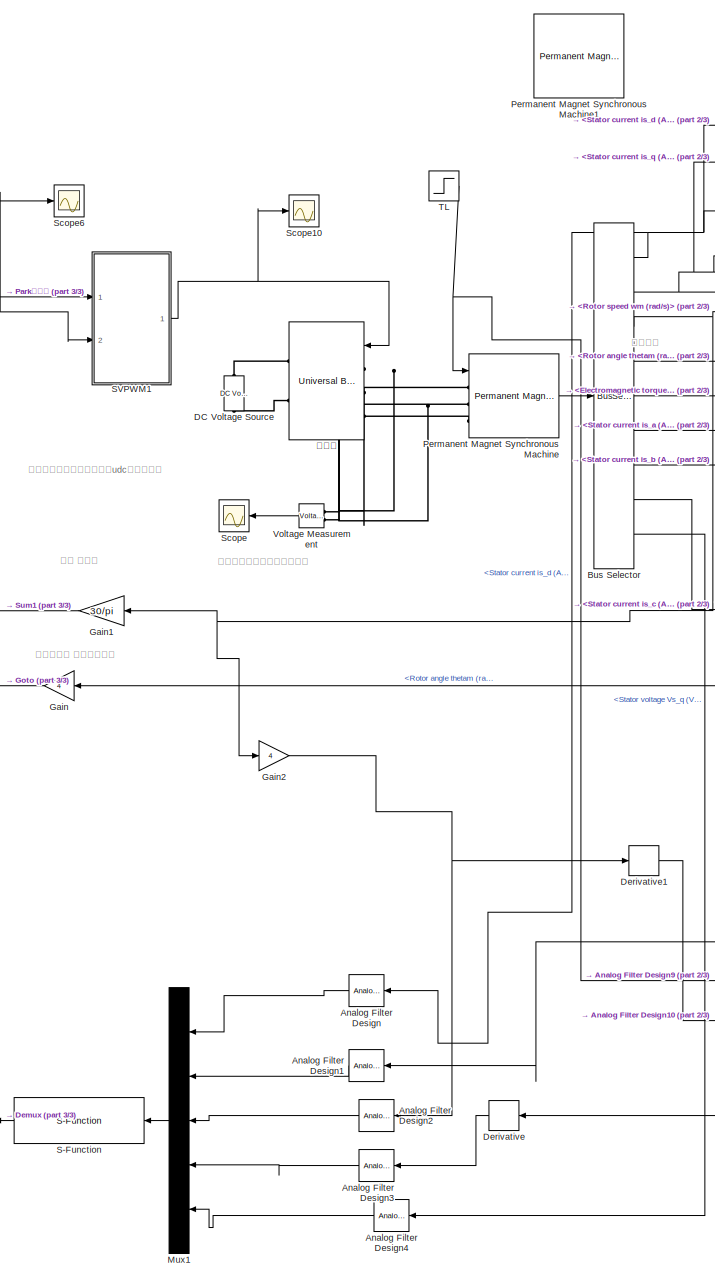
[diagram: root canvas - part 1/3, center side, full height]
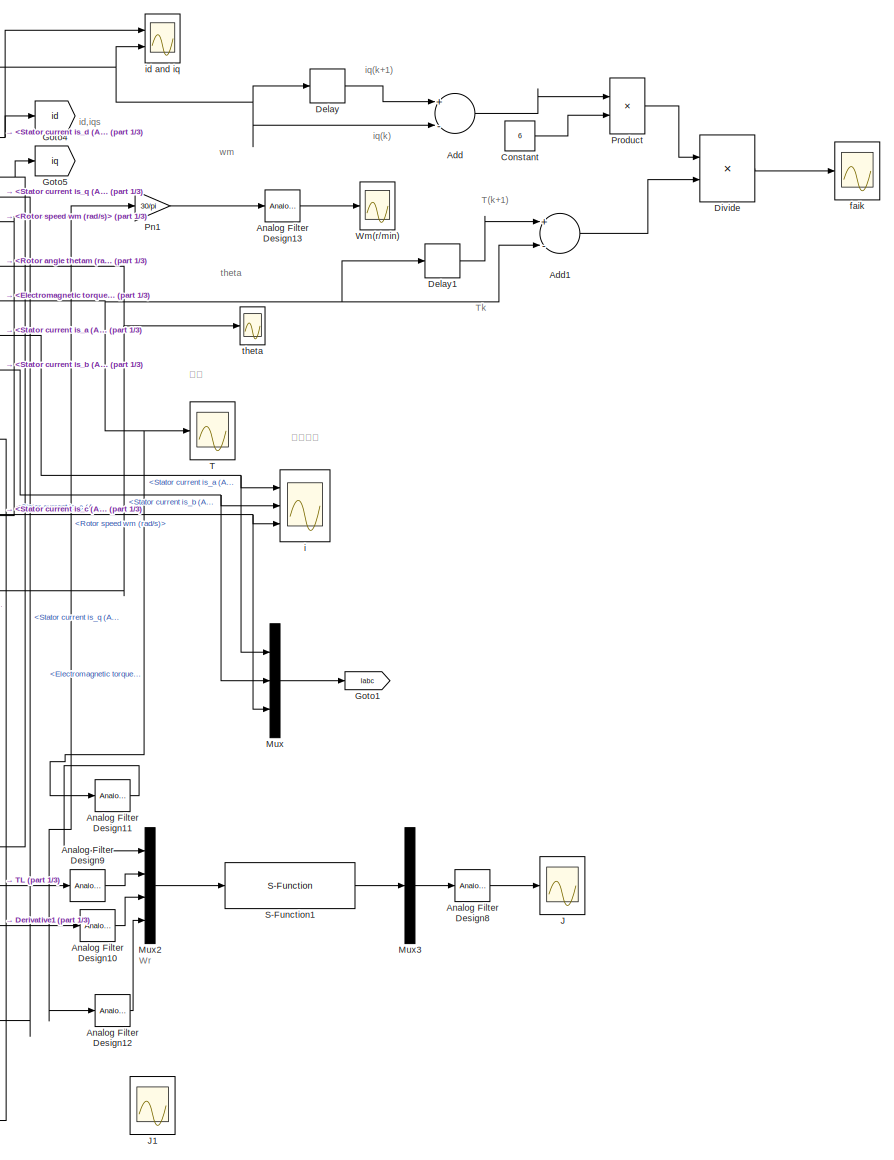
[diagram: root canvas - part 2/3, right side, full height]
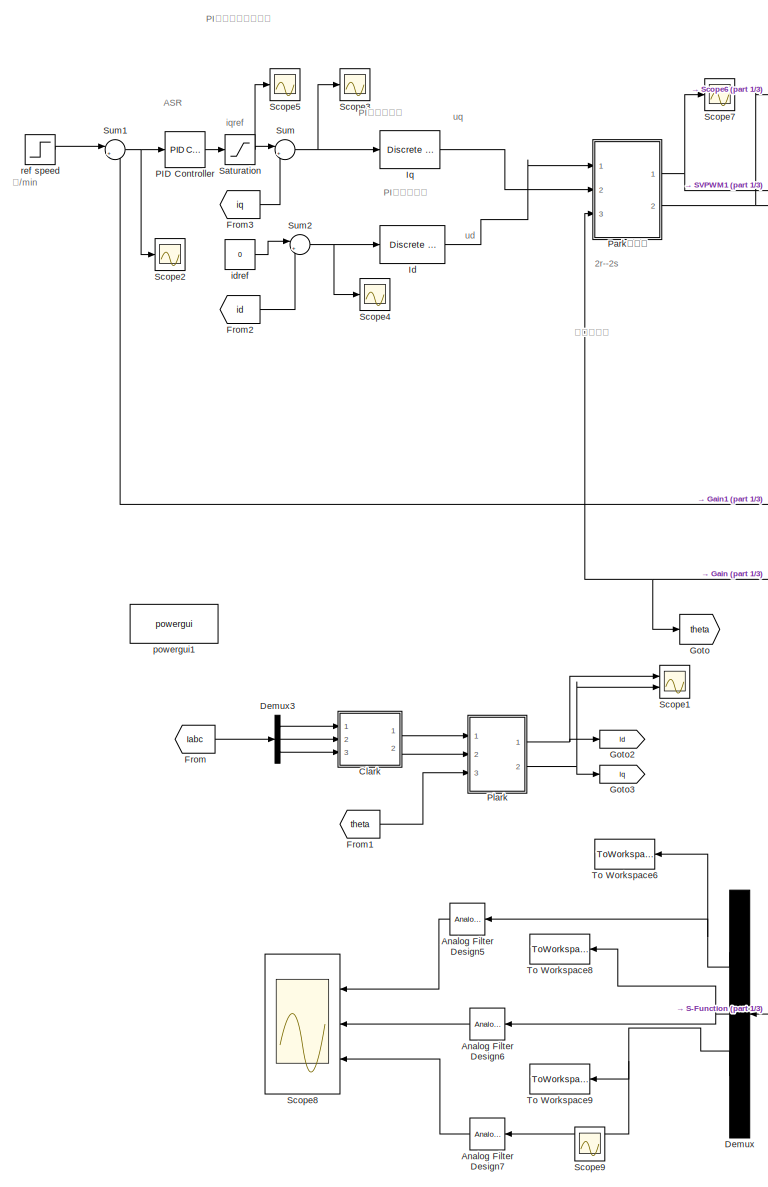
[diagram: root canvas - part 3/3, left side, full height]
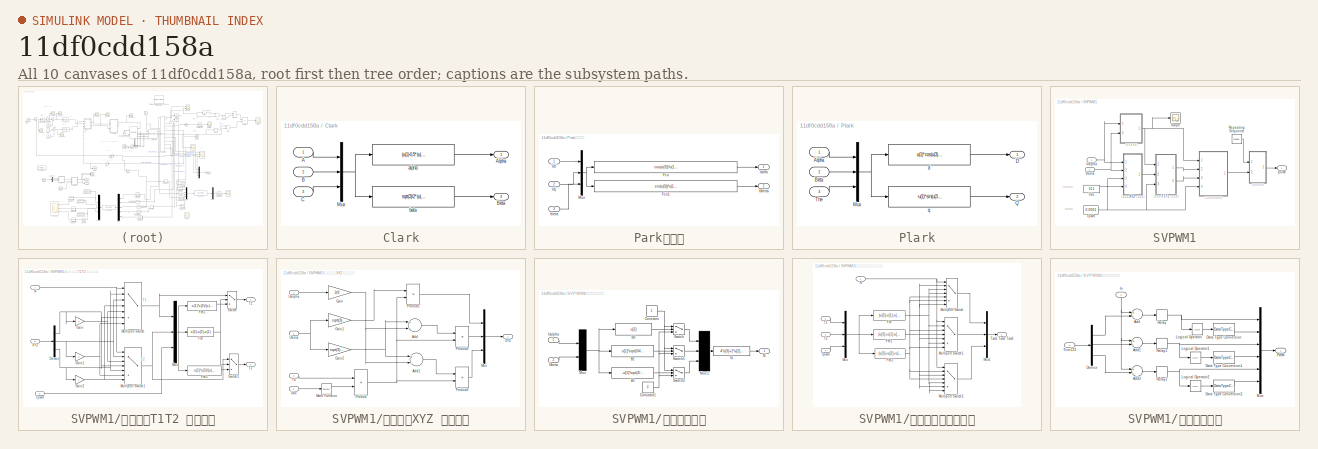
[diagram: thumbnail index - all 10 canvases of the model, root first then tree order]
MODEL slx_11df0cdd158a
KIND model
CONFIG AbsTol = auto
CONFIG FixedStep = 1e-5
CONFIG InitFcn = Ts = 1e-5\n\n
CONFIG MaxStep = auto
CONFIG MinStep = auto
CONFIG RelTol = 1e-4
CONFIG SampleTimeConstraint = Unconstrained
CONFIG Solver = ode4
CONFIG SolverMode = Auto
CONFIG SolverName = ode4
CONFIG StartTime = 0.0
CONFIG StopTime = 2.5
BLOCK [Sum] Add
  InputSameDT = off
  Inputs = +-
  OutDataTypeStr = Inherit: Inherit via internal rule
  Ports = [2, 1]
  SaturateOnIntegerOverflow = off
BLOCK [Sum] Add1
  InputSameDT = off
  Inputs = +-
  OutDataTypeStr = Inherit: Inherit via internal rule
  Ports = [2, 1]
  SaturateOnIntegerOverflow = off
BLOCK [Reference] Analog Filter Design  REF=dsparch4/Analog
Filter Design
  Ports = [1, 1]
  SourceBlock = dsparch4/Analog\nFilter Design
  SourceType = Analog Filter Design
BLOCK [Reference] Analog Filter Design1  REF=dsparch4/Analog
Filter Design
  Ports = [1, 1]
  SourceBlock = dsparch4/Analog\nFilter Design
  SourceType = Analog Filter Design
BLOCK [Reference] Analog Filter Design10  REF=dsparch4/Analog
Filter Design
  Commented = on
  Ports = [1, 1]
  SourceBlock = dsparch4/Analog\nFilter Design
  SourceType = Analog Filter Design
BLOCK [Reference] Analog Filter Design11  REF=dsparch4/Analog
Filter Design
  Commented = on
  Ports = [1, 1]
  SourceBlock = dsparch4/Analog\nFilter Design
  SourceType = Analog Filter Design
BLOCK [Reference] Analog Filter Design12  REF=dsparch4/Analog
Filter Design
  Commented = on
  Ports = [1, 1]
  SourceBlock = dsparch4/Analog\nFilter Design
  SourceType = Analog Filter Design
BLOCK [Reference] Analog Filter Design13  REF=dsparch4/Analog
Filter Design
  Ports = [1, 1]
  SourceBlock = dsparch4/Analog\nFilter Design
  SourceType = Analog Filter Design
BLOCK [Reference] Analog Filter Design2  REF=dsparch4/Analog
Filter Design
  Ports = [1, 1]
  SourceBlock = dsparch4/Analog\nFilter Design
  SourceType = Analog Filter Design
BLOCK [Reference] Analog Filter Design3  REF=dsparch4/Analog
Filter Design
  Ports = [1, 1]
  SourceBlock = dsparch4/Analog\nFilter Design
  SourceType = Analog Filter Design
BLOCK [Reference] Analog Filter Design4  REF=dsparch4/Analog
Filter Design
  Ports = [1, 1]
  SourceBlock = dsparch4/Analog\nFilter Design
  SourceType = Analog Filter Design
BLOCK [Reference] Analog Filter Design5  REF=dsparch4/Analog
Filter Design
  Ports = [1, 1]
  SourceBlock = dsparch4/Analog\nFilter Design
  SourceType = Analog Filter Design
BLOCK [Reference] Analog Filter Design6  REF=dsparch4/Analog
Filter Design
  Ports = [1, 1]
  SourceBlock = dsparch4/Analog\nFilter Design
  SourceType = Analog Filter Design
BLOCK [Reference] Analog Filter Design7  REF=dsparch4/Analog
Filter Design
  Ports = [1, 1]
  SourceBlock = dsparch4/Analog\nFilter Design
  SourceType = Analog Filter Design
BLOCK [Reference] Analog Filter Design8  REF=dsparch4/Analog
Filter Design
  Commented = on
  Ports = [1, 1]
  SourceBlock = dsparch4/Analog\nFilter Design
  SourceType = Analog Filter Design
BLOCK [Reference] Analog Filter Design9  REF=dsparch4/Analog
Filter Design
  Commented = on
  Ports = [1, 1]
  SourceBlock = dsparch4/Analog\nFilter Design
  SourceType = Analog Filter Design
BLOCK [BusSelector] Bus Selector
  OutputSignals = Stator current is_d (A),Stator current is_q (A),Rotor speed wm (rad/s),Rotor angle thetam (rad),Electromagnetic torque Te (N*m),Stator current is_a (A),Stator current is_b (A),Stator current is_c (A),Stator voltage Vs_q (V)
  Ports = [1, 9]
BLOCK [SubSystem] Clark
  Ports = [3, 2]
  RequestExecContextInheritance = off
  Variant = off
BLOCK [Inport] Clark/A
  IconDisplay = Port number
BLOCK [Outport] Clark/Alpha
  IconDisplay = Port number
BLOCK [Inport] Clark/B
  IconDisplay = Port number
  Port = 2
BLOCK [Outport] Clark/Beta
  IconDisplay = Port number
  Port = 2
BLOCK [Inport] Clark/C
  IconDisplay = Port number
  Port = 3
BLOCK [Mux] Clark/Mux
  DisplayOption = bar
  Inputs = 3
  Ports = [3, 1]
BLOCK [Fcn] Clark/alpha
  Expr = (u(1)-0.5*(u(2)+u(3)))*2/3
BLOCK [Fcn] Clark/beta
  Expr = sqrt(3)/2*(u(2)-u(3))*2/3
BLOCK [Constant] Constant
  Value = 6
BLOCK [Reference] DC Voltage Source  REF=powerlib/Electrical
Sources/DC Voltage Source
  Ports = [0, 0, 0, 0, 0, 1, 1]
  SourceBlock = powerlib/Electrical\nSources/DC Voltage Source
  SourceType = DC Voltage Source
BLOCK [Delay] Delay
  DelayLength = 1
  InitialCondition = 0
  InputPortMap = u0
  Ports = [1, 1]
BLOCK [Delay] Delay1
  DelayLength = 1
  InitialCondition = 0
  InputPortMap = u0
  Ports = [1, 1]
BLOCK [Demux] Demux
  DisplayOption = bar
  Outputs = 3
  Ports = [1, 3]
BLOCK [Demux] Demux3
  DisplayOption = bar
  Outputs = 3
  Ports = [1, 3]
BLOCK [Derivative] Derivative
BLOCK [Derivative] Derivative1
  Commented = on
BLOCK [Product] Divide
  InputSameDT = off
  Inputs = /*
  OutDataTypeStr = Inherit: Inherit via internal rule
  Ports = [2, 1]
  RndMeth = Floor
  SaturateOnIntegerOverflow = off
BLOCK [From] From
  GotoTag = Iabc
  TagVisibility = global
BLOCK [From] From1
  GotoTag = theta
BLOCK [From] From2
  GotoTag = id
BLOCK [From] From3
  GotoTag = iq
BLOCK [Gain] Gain
  Gain = 4
  OutDataTypeStr = Inherit: Inherit via internal rule
  ParamDataTypeStr = Inherit: Inherit via internal rule
  SaturateOnIntegerOverflow = off
BLOCK [Gain] Gain1
  Gain = 30/pi
  OutDataTypeStr = Inherit: Inherit via internal rule
  ParamDataTypeStr = Inherit: Inherit via internal rule
  SaturateOnIntegerOverflow = off
BLOCK [Gain] Gain2
  Gain = 4
  OutDataTypeStr = Inherit: Inherit via internal rule
  ParamDataTypeStr = Inherit: Inherit via internal rule
  SaturateOnIntegerOverflow = off
BLOCK [Goto] Goto
  GotoTag = theta
BLOCK [Goto] Goto1
  GotoTag = Iabc
  TagVisibility = global
BLOCK [Goto] Goto2
  GotoTag = Id
  TagVisibility = global
BLOCK [Goto] Goto3
  GotoTag = Iq
  TagVisibility = global
BLOCK [Goto] Goto4
  GotoTag = id
BLOCK [Goto] Goto5
  GotoTag = iq
BLOCK [Reference] Id  REF=powerlib_extras/Discrete 
Control Blocks/Discrete
PI Controller
  Ports = [1, 1]
  SourceBlock = powerlib_extras/Discrete \nControl Blocks/Discrete\nPI Controller
  SourceType = Discrete PI Controller
BLOCK [Reference] Iq  REF=powerlib_extras/Discrete 
Control Blocks/Discrete
PI Controller
  Ports = [1, 1]
  SourceBlock = powerlib_extras/Discrete \nControl Blocks/Discrete\nPI Controller
  SourceType = Discrete PI Controller
BLOCK [Scope] J
  Commented = on
  Ports = [1]
  ScopeSpecificationString = Simulink.scopes.TimeScopeBlockCfg('CurrentConfiguration', extmgr.ConfigurationSet(extmgr.Configuration('Core','General UI',true,'FigureColor',[1 1 1]),extmgr.Configuration('Core','Source UI',true),extmgr.Configuration('Sources','WiredSimulink',true,'DataLoggingVariableName','ScopeData3'),extmgr.Configuration('Visuals','Time Domain',true,'SerializedDisplays',{struct('MinYLimReal','-0.000008','MaxYL...<+1594ch>
BLOCK [Scope] J1
  Commented = on
  Ports = [1]
  ScopeSpecificationString = Simulink.scopes.TimeScopeBlockCfg('CurrentConfiguration', extmgr.ConfigurationSet(extmgr.Configuration('Core','General UI',true,'FigureColor',[1 1 1]),extmgr.Configuration('Core','Source UI',true),extmgr.Configuration('Sources','WiredSimulink',true,'DataLoggingVariableName','ScopeData1'),extmgr.Configuration('Visuals','Time Domain',true,'SerializedDisplays',{struct('MinYLimReal','-18.89443','MaxYL...<+1584ch>
BLOCK [Mux] Mux
  DisplayOption = bar
  Inputs = 3
  Ports = [3, 1]
BLOCK [Mux] Mux1
  DisplayOption = bar
  Inputs = 5
  Ports = [5, 1]
BLOCK [Mux] Mux2
  Commented = on
  DisplayOption = bar
  Ports = [4, 1]
BLOCK [Mux] Mux3
  Commented = on
  DisplayOption = bar
  Inputs = 1
  Ports = [1, 1]
BLOCK [Reference] PID Controller  REF=simulink/Continuous/PID Controller
  Ports = [1, 1]
  SourceBlock = simulink/Continuous/PID Controller
  SourceType = PID 1dof
BLOCK [SubSystem] Park逆变换
  Ports = [3, 2]
  RequestExecContextInheritance = off
  Variant = off
BLOCK [Fcn] Park逆变换/Fcn
  Expr = cos(u(3))*u(1)-sin(u(3))*u(2)
BLOCK [Fcn] Park逆变换/Fcn1
  Expr = sin(u(3))*u(1)+cos(u(3))*u(2)
BLOCK [Mux] Park逆变换/Mux
  DisplayOption = bar
  Inputs = 3
  Ports = [3, 1]
BLOCK [Outport] Park逆变换/Ualfa
  IconDisplay = Port number
BLOCK [Outport] Park逆变换/Ubeita
  IconDisplay = Port number
  Port = 2
BLOCK [Inport] Park逆变换/Ud'
  IconDisplay = Port number
BLOCK [Inport] Park逆变换/Uq'
  IconDisplay = Port number
  Port = 2
BLOCK [Inport] Park逆变换/theta
  IconDisplay = Port number
  Port = 3
BLOCK [Reference] Permanent Magnet Synchronous Machine  REF=powerlib/Machines/Permanent Magnet
Synchronous Machine
  Ports = [1, 1, 0, 0, 0, 3]
  SourceBlock = powerlib/Machines/Permanent Magnet\nSynchronous Machine
  SourceType = Permanent Magnet Synchronous Machine
BLOCK [Reference] Permanent Magnet Synchronous Machine1  REF=powerlib/Machines/Permanent Magnet
Synchronous Machine
  Commented = on
  Ports = [1, 1, 0, 0, 0, 3]
  SourceBlock = powerlib/Machines/Permanent Magnet\nSynchronous Machine
  SourceType = Permanent Magnet Synchronous Machine
BLOCK [SubSystem] Plark
  Ports = [3, 2]
  RequestExecContextInheritance = off
  Variant = off
BLOCK [Inport] Plark/Alpha
  IconDisplay = Port number
BLOCK [Inport] Plark/Beta
  IconDisplay = Port number
  Port = 2
BLOCK [Outport] Plark/D
  IconDisplay = Port number
BLOCK [Mux] Plark/Mux
  DisplayOption = bar
  Inputs = 3
  Ports = [3, 1]
BLOCK [Outport] Plark/Q
  IconDisplay = Port number
  Port = 2
BLOCK [Inport] Plark/The
  IconDisplay = Port number
  Port = 3
BLOCK [Fcn] Plark/d
  Expr = u(1)*cos(u(3))+u(2)*sin(u(3))
BLOCK [Fcn] Plark/q
  Expr = -u(1)*sin(u(3))+u(2)*cos(u(3))
BLOCK [Gain] Pn1
  Gain = 30/pi
  OutDataTypeStr = Inherit: Inherit via internal rule
  ParamDataTypeStr = Inherit: Inherit via internal rule
  SaturateOnIntegerOverflow = off
BLOCK [Product] Product
  InputSameDT = off
  OutDataTypeStr = Inherit: Inherit via internal rule
  Ports = [2, 1]
  RndMeth = Floor
  SaturateOnIntegerOverflow = off
BLOCK [S-Function] S-Function
  EnableBusSupport = off
  FunctionName = Synchronous_demarcate
  Ports = [1, 1]
  SFunctionDeploymentMode = off
BLOCK [S-Function] S-Function1
  Commented = on
  EnableBusSupport = off
  FunctionName = Synchronous_demarcate2
  Ports = [1, 1]
  SFunctionDeploymentMode = off
BLOCK [SubSystem] SVPWM1
  Ports = [2, 1]
  RequestExecContextInheritance = off
  Variant = off
BLOCK [Reference] SVPWM1/Repeating Sequence  REF=simulink/Sources/Repeating
Sequence
  Ports = [0, 1]
  SourceBlock = simulink/Sources/Repeating\nSequence
  SourceType = Repeating table
BLOCK [Scope] SVPWM1/Scope
  Ports = [1]
  ScopeSpecificationString = Simulink.scopes.TimeScopeBlockCfg('CurrentConfiguration', extmgr.ConfigurationSet(extmgr.Configuration('Core','General UI',true),extmgr.Configuration('Core','Source UI',true),extmgr.Configuration('Sources','WiredSimulink',true,'DataLoggingVariableName','ScopeData1'),extmgr.Configuration('Visuals','Time Domain',true,'SerializedDisplays',{struct('MinYLimReal','0.60608','MaxYLimReal','6.16547','YLabe...<+1436ch>
BLOCK [Constant] SVPWM1/Tpwm
  Value = 0.0001
BLOCK [Inport] SVPWM1/Valpha
  IconDisplay = Port number
BLOCK [Inport] SVPWM1/Vbeta
  IconDisplay = Port number
  Port = 2
BLOCK [Constant] SVPWM1/Vdc
  Value = 311
BLOCK [Outport] SVPWM1/pulse
  IconDisplay = Port number
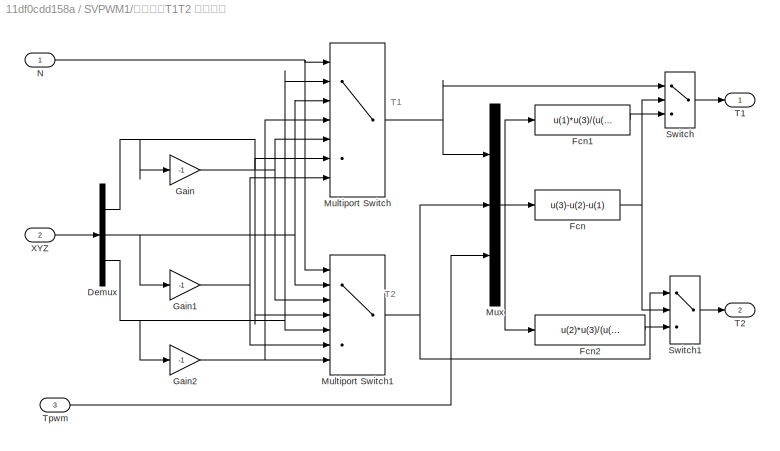
BLOCK [SubSystem] SVPWM1/不同扇区T1T2 计算模型
  Ports = [3, 2]
  RequestExecContextInheritance = off
  Variant = off
BLOCK [Demux] SVPWM1/不同扇区T1T2 计算模型/Demux
  DisplayOption = bar
  Outputs = 3
  Ports = [1, 3]
BLOCK [Fcn] SVPWM1/不同扇区T1T2 计算模型/Fcn
  Expr = u(3)-u(2)-u(1)
BLOCK [Fcn] SVPWM1/不同扇区T1T2 计算模型/Fcn1
  Expr = u(1)*u(3)/(u(1)+u(2))
BLOCK [Fcn] SVPWM1/不同扇区T1T2 计算模型/Fcn2
  Expr = u(2)*u(3)/(u(1)+u(2))
BLOCK [Gain] SVPWM1/不同扇区T1T2 计算模型/Gain
  Gain = -1
  OutDataTypeStr = Inherit: Inherit via internal rule
  ParamDataTypeStr = Inherit: Inherit via internal rule
  SaturateOnIntegerOverflow = off
BLOCK [Gain] SVPWM1/不同扇区T1T2 计算模型/Gain1
  Gain = -1
  OutDataTypeStr = Inherit: Inherit via internal rule
  ParamDataTypeStr = Inherit: Inherit via internal rule
  SaturateOnIntegerOverflow = off
BLOCK [Gain] SVPWM1/不同扇区T1T2 计算模型/Gain2
  Gain = -1
  OutDataTypeStr = Inherit: Inherit via internal rule
  ParamDataTypeStr = Inherit: Inherit via internal rule
  SaturateOnIntegerOverflow = off
BLOCK [MultiPortSwitch] SVPWM1/不同扇区T1T2 计算模型/Multiport Switch
  DiagnosticForDefault = None
  InputSameDT = off
  Inputs = 6
  Ports = [7, 1]
  SaturateOnIntegerOverflow = off
BLOCK [MultiPortSwitch] SVPWM1/不同扇区T1T2 计算模型/Multiport Switch1
  DiagnosticForDefault = None
  InputSameDT = off
  Inputs = 6
  Ports = [7, 1]
  SaturateOnIntegerOverflow = off
BLOCK [Mux] SVPWM1/不同扇区T1T2 计算模型/Mux
  DisplayOption = bar
  Inputs = 3
  Ports = [3, 1]
BLOCK [Inport] SVPWM1/不同扇区T1T2 计算模型/N
  IconDisplay = Port number
BLOCK [Switch] SVPWM1/不同扇区T1T2 计算模型/Switch
  InputSameDT = off
  SaturateOnIntegerOverflow = off
BLOCK [Switch] SVPWM1/不同扇区T1T2 计算模型/Switch1
  Criteria = u2 > Threshold
  InputSameDT = off
  SaturateOnIntegerOverflow = off
BLOCK [Outport] SVPWM1/不同扇区T1T2 计算模型/T1
  IconDisplay = Port number
BLOCK [Outport] SVPWM1/不同扇区T1T2 计算模型/T2
  IconDisplay = Port number
  Port = 2
BLOCK [Inport] SVPWM1/不同扇区T1T2 计算模型/Tpwm
  IconDisplay = Port number
  Port = 3
BLOCK [Inport] SVPWM1/不同扇区T1T2 计算模型/XYZ
  IconDisplay = Port number
  Port = 2
BLOCK [SubSystem] SVPWM1/不同扇区XYZ 计算模型
  Ports = [4, 1]
  RequestExecContextInheritance = off
  Variant = off
BLOCK [Sum] SVPWM1/不同扇区XYZ 计算模型/Add
  InputSameDT = off
  OutDataTypeStr = Inherit: Inherit via internal rule
  Ports = [2, 1]
  SaturateOnIntegerOverflow = off
BLOCK [Sum] SVPWM1/不同扇区XYZ 计算模型/Add1
  InputSameDT = off
  Inputs = +-
  OutDataTypeStr = Inherit: Inherit via internal rule
  Ports = [2, 1]
  SaturateOnIntegerOverflow = off
BLOCK [Gain] SVPWM1/不同扇区XYZ 计算模型/Gain
  Gain = 3/2
  OutDataTypeStr = Inherit: Inherit via internal rule
  ParamDataTypeStr = Inherit: Inherit via internal rule
  SaturateOnIntegerOverflow = off
BLOCK [Gain] SVPWM1/不同扇区XYZ 计算模型/Gain1
  Gain = sqrt(3)
  OutDataTypeStr = Inherit: Inherit via internal rule
  ParamDataTypeStr = Inherit: Inherit via internal rule
  SaturateOnIntegerOverflow = off
BLOCK [Gain] SVPWM1/不同扇区XYZ 计算模型/Gain2
  Gain = sqrt(3)/2
  OutDataTypeStr = Inherit: Inherit via internal rule
  ParamDataTypeStr = Inherit: Inherit via internal rule
  SaturateOnIntegerOverflow = off
BLOCK [Math] SVPWM1/不同扇区XYZ 计算模型/Math Function
  Operator = reciprocal
  Ports = [1, 1]
BLOCK [Mux] SVPWM1/不同扇区XYZ 计算模型/Mux
  DisplayOption = bar
  Inputs = 3
  Ports = [3, 1]
BLOCK [Product] SVPWM1/不同扇区XYZ 计算模型/Product
  InputSameDT = off
  OutDataTypeStr = Inherit: Inherit via internal rule
  Ports = [2, 1]
  SaturateOnIntegerOverflow = off
BLOCK [Product] SVPWM1/不同扇区XYZ 计算模型/Product1
  InputSameDT = off
  OutDataTypeStr = Inherit: Inherit via internal rule
  Ports = [2, 1]
  SaturateOnIntegerOverflow = off
BLOCK [Product] SVPWM1/不同扇区XYZ 计算模型/Product2
  InputSameDT = off
  OutDataTypeStr = Inherit: Inherit via internal rule
  Ports = [2, 1]
  SaturateOnIntegerOverflow = off
BLOCK [Product] SVPWM1/不同扇区XYZ 计算模型/Product3
  InputSameDT = off
  OutDataTypeStr = Inherit: Inherit via internal rule
  Ports = [2, 1]
  SaturateOnIntegerOverflow = off
BLOCK [Inport] SVPWM1/不同扇区XYZ 计算模型/Ts
  IconDisplay = Port number
  Port = 3
BLOCK [Inport] SVPWM1/不同扇区XYZ 计算模型/Ualpha
  IconDisplay = Port number
BLOCK [Inport] SVPWM1/不同扇区XYZ 计算模型/Ubeta
  IconDisplay = Port number
  Port = 2
BLOCK [Inport] SVPWM1/不同扇区XYZ 计算模型/Udc
  IconDisplay = Port number
  Port = 4
BLOCK [Outport] SVPWM1/不同扇区XYZ 计算模型/XYZ
  IconDisplay = Port number
BLOCK [SubSystem] SVPWM1/扇区计算模型
  Ports = [2, 1]
  RequestExecContextInheritance = off
  Variant = off
BLOCK [Fcn] SVPWM1/扇区计算模型/B0
  Expr = u[2]
BLOCK [Fcn] SVPWM1/扇区计算模型/B1
  Expr = u[1]*sqrt(3/4)-0.5*u[2]
BLOCK [Fcn] SVPWM1/扇区计算模型/B2
  Expr = -u[1]*sqrt(3/4)-u[2]*0.5
BLOCK [Constant] SVPWM1/扇区计算模型/Constant
BLOCK [Constant] SVPWM1/扇区计算模型/Constant1
  Value = 0
BLOCK [Mux] SVPWM1/扇区计算模型/Mux
  Inputs = 2
  Ports = [2, 1]
BLOCK [Mux] SVPWM1/扇区计算模型/Mux1
  Inputs = 3
  Ports = [3, 1]
BLOCK [Fcn] SVPWM1/扇区计算模型/N
  Expr = 4*u[3]+2*u[2]+u[1]
BLOCK [Outport] SVPWM1/扇区计算模型/N 
  IconDisplay = Port number
BLOCK [Switch] SVPWM1/扇区计算模型/Switch
  InputSameDT = off
  SaturateOnIntegerOverflow = off
BLOCK [Switch] SVPWM1/扇区计算模型/Switch1
  InputSameDT = off
  SaturateOnIntegerOverflow = off
BLOCK [Switch] SVPWM1/扇区计算模型/Switch2
  InputSameDT = off
  SaturateOnIntegerOverflow = off
BLOCK [Inport] SVPWM1/扇区计算模型/Ualpha
  IconDisplay = Port number
BLOCK [Inport] SVPWM1/扇区计算模型/Ubeta
  IconDisplay = Port number
  Port = 2
BLOCK [SubSystem] SVPWM1/空间电压矢量切换点
  Ports = [4, 1]
  RequestExecContextInheritance = off
  Variant = off
BLOCK [Fcn] SVPWM1/空间电压矢量切换点/Fcn
  Expr = (u[3]-u[1]-u[2])/4
BLOCK [Fcn] SVPWM1/空间电压矢量切换点/Fcn1
  Expr = (u[3]+u[1]-u[2])/4
BLOCK [Fcn] SVPWM1/空间电压矢量切换点/Fcn2
  Expr = (u[3]+u[2]+u[1])/4
BLOCK [MultiPortSwitch] SVPWM1/空间电压矢量切换点/Multiport Switch
  DiagnosticForDefault = None
  InputSameDT = off
  Inputs = 6
  Ports = [7, 1]
  SaturateOnIntegerOverflow = off
BLOCK [MultiPortSwitch] SVPWM1/空间电压矢量切换点/Multiport Switch1
  DiagnosticForDefault = None
  InputSameDT = off
  Inputs = 6
  Ports = [7, 1]
  SaturateOnIntegerOverflow = off
BLOCK [MultiPortSwitch] SVPWM1/空间电压矢量切换点/Multiport Switch2
  DiagnosticForDefault = None
  InputSameDT = off
  Inputs = 6
  Ports = [7, 1]
  SaturateOnIntegerOverflow = off
BLOCK [Mux] SVPWM1/空间电压矢量切换点/Mux
  DisplayOption = bar
  Inputs = 3
  Ports = [3, 1]
BLOCK [Mux] SVPWM1/空间电压矢量切换点/Mux1
  DisplayOption = bar
  Inputs = 3
  Ports = [3, 1]
BLOCK [Inport] SVPWM1/空间电压矢量切换点/N
  IconDisplay = Port number
BLOCK [Inport] SVPWM1/空间电压矢量切换点/T1
  IconDisplay = Port number
  Port = 2
BLOCK [Inport] SVPWM1/空间电压矢量切换点/T2
  IconDisplay = Port number
  Port = 3
BLOCK [Outport] SVPWM1/空间电压矢量切换点/Tcm1 Tcm2 Tcm3
  IconDisplay = Port number
BLOCK [Inport] SVPWM1/空间电压矢量切换点/Tpwm
  IconDisplay = Port number
  Port = 4
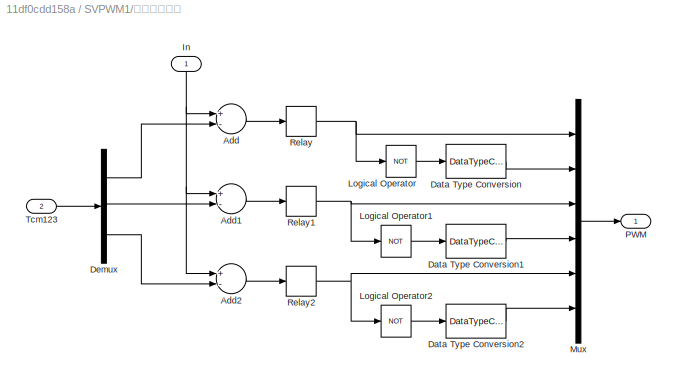
BLOCK [SubSystem] SVPWM1/脉冲输出模型
  Ports = [2, 1]
  RequestExecContextInheritance = off
  Variant = off
BLOCK [Sum] SVPWM1/脉冲输出模型/Add
  InputSameDT = off
  Inputs = +-
  OutDataTypeStr = Inherit: Inherit via internal rule
  Ports = [2, 1]
  SaturateOnIntegerOverflow = off
BLOCK [Sum] SVPWM1/脉冲输出模型/Add1
  InputSameDT = off
  Inputs = +-
  OutDataTypeStr = Inherit: Inherit via internal rule
  Ports = [2, 1]
  SaturateOnIntegerOverflow = off
BLOCK [Sum] SVPWM1/脉冲输出模型/Add2
  InputSameDT = off
  Inputs = +-
  OutDataTypeStr = Inherit: Inherit via internal rule
  Ports = [2, 1]
  SaturateOnIntegerOverflow = off
BLOCK [DataTypeConversion] SVPWM1/脉冲输出模型/Data Type Conversion
  OutDataTypeStr = double
  RndMeth = Floor
  SaturateOnIntegerOverflow = off
BLOCK [DataTypeConversion] SVPWM1/脉冲输出模型/Data Type Conversion1
  OutDataTypeStr = double
  RndMeth = Floor
  SaturateOnIntegerOverflow = off
BLOCK [DataTypeConversion] SVPWM1/脉冲输出模型/Data Type Conversion2
  OutDataTypeStr = double
  RndMeth = Floor
  SaturateOnIntegerOverflow = off
BLOCK [Demux] SVPWM1/脉冲输出模型/Demux
  DisplayOption = bar
  Outputs = 3
  Ports = [1, 3]
BLOCK [Inport] SVPWM1/脉冲输出模型/In
  IconDisplay = Port number
BLOCK [Logic] SVPWM1/脉冲输出模型/Logical Operator
  AllPortsSameDT = off
  Operator = NOT
  OutDataTypeStr = boolean
  Ports = [1, 1]
BLOCK [Logic] SVPWM1/脉冲输出模型/Logical Operator1
  AllPortsSameDT = off
  Operator = NOT
  OutDataTypeStr = boolean
  Ports = [1, 1]
BLOCK [Logic] SVPWM1/脉冲输出模型/Logical Operator2
  AllPortsSameDT = off
  Operator = NOT
  OutDataTypeStr = boolean
  Ports = [1, 1]
BLOCK [Mux] SVPWM1/脉冲输出模型/Mux
  DisplayOption = bar
  Inputs = 6
  Ports = [6, 1]
BLOCK [Outport] SVPWM1/脉冲输出模型/PWM
  IconDisplay = Port number
BLOCK [Relay] SVPWM1/脉冲输出模型/Relay
  OffSwitchValue = -eps
BLOCK [Relay] SVPWM1/脉冲输出模型/Relay1
  OffSwitchValue = -eps
BLOCK [Relay] SVPWM1/脉冲输出模型/Relay2
  OffSwitchValue = -eps
BLOCK [Inport] SVPWM1/脉冲输出模型/Tcm123
  IconDisplay = Port number
  Port = 2
BLOCK [Saturate] Saturation
  InputPortMap = u0
  LowerLimit = -20
  Ports = [1, 1]
  UpperLimit = 20
BLOCK [Scope] Scope
  Ports = [1]
  ScopeSpecificationString = Simulink.scopes.TimeScopeBlockCfg('CurrentConfiguration', extmgr.ConfigurationSet(extmgr.Configuration('Core','General UI',true),extmgr.Configuration('Core','Source UI',true),extmgr.Configuration('Sources','WiredSimulink',true,'DataLoggingSaveFormat','Array','DataLoggingDecimation','1','DataLoggingDecimateData',true),extmgr.Configuration('Visuals','Time Domain',true,'SerializedDisplays',{struct('M...<+1515ch>
BLOCK [Scope] Scope1
  NumInputPorts = 2
  Ports = [2]
  ScopeSpecificationString = Simulink.scopes.TimeScopeBlockCfg('CurrentConfiguration', extmgr.ConfigurationSet(extmgr.Configuration('Core','General UI',true),extmgr.Configuration('Core','Source UI',true),extmgr.Configuration('Sources','WiredSimulink',true,'DataLoggingVariableName','ScopeData2'),extmgr.Configuration('Visuals','Time Domain',true,'SerializedDisplays',{struct('MinYLimReal','-3.91087','MaxYLimReal','23.15011','YLa...<+1409ch>
BLOCK [Scope] Scope10
  Ports = [1]
  ScopeSpecificationString = Simulink.scopes.TimeScopeBlockCfg('CurrentConfiguration', extmgr.ConfigurationSet(extmgr.Configuration('Core','General UI',true),extmgr.Configuration('Core','Source UI',true),extmgr.Configuration('Sources','WiredSimulink',true,'DataLoggingVariableName','ScopeData1'),extmgr.Configuration('Visuals','Time Domain',true,'SerializedDisplays',{struct('MinYLimReal','-0.03087','MaxYLimReal','1.02019','YLab...<+1471ch>
BLOCK [Scope] Scope2
  Ports = [1]
  ScopeSpecificationString = Simulink.scopes.TimeScopeBlockCfg('CurrentConfiguration', extmgr.ConfigurationSet(extmgr.Configuration('Core','General UI',true),extmgr.Configuration('Core','Source UI',true),extmgr.Configuration('Sources','WiredSimulink',true,'DataLoggingVariableName','ScopeData1'),extmgr.Configuration('Visuals','Time Domain',true,'SerializedDisplays',{struct('MinYLimReal','1990.99317','MaxYLimReal','2010.5086','...<+1381ch>
BLOCK [Scope] Scope3
  Ports = [1]
  ScopeSpecificationString = Simulink.scopes.TimeScopeBlockCfg('CurrentConfiguration', extmgr.ConfigurationSet(extmgr.Configuration('Core','General UI',true),extmgr.Configuration('Core','Source UI',true),extmgr.Configuration('Sources','WiredSimulink',true,'DataLoggingVariableName','ScopeData2'),extmgr.Configuration('Visuals','Time Domain',true,'SerializedDisplays',{struct('MinYLimReal','-20.78233','MaxYLimReal','24.53137','YL...<+1368ch>
BLOCK [Scope] Scope4
  Ports = [1]
  ScopeSpecificationString = Simulink.scopes.TimeScopeBlockCfg('CurrentConfiguration', extmgr.ConfigurationSet(extmgr.Configuration('Core','General UI',true),extmgr.Configuration('Core','Source UI',true),extmgr.Configuration('Sources','WiredSimulink',true,'DataLoggingVariableName','ScopeData4'),extmgr.Configuration('Visuals','Time Domain',true,'SerializedDisplays',{struct('MinYLimReal','-3.95473','MaxYLimReal','0.77902','YLab...<+1363ch>
BLOCK [Scope] Scope5
  Ports = [1]
  ScopeSpecificationString = Simulink.scopes.TimeScopeBlockCfg('CurrentConfiguration', extmgr.ConfigurationSet(extmgr.Configuration('Core','General UI',true),extmgr.Configuration('Core','Source UI',true),extmgr.Configuration('Sources','WiredSimulink',true,'DataLoggingVariableName','ScopeData5'),extmgr.Configuration('Visuals','Time Domain',true,'SerializedDisplays',{struct('MinYLimReal','10.00000','MaxYLimReal','30.00000','YLa...<+1375ch>
BLOCK [Scope] Scope6
  Ports = [1]
  ScopeSpecificationString = Simulink.scopes.TimeScopeBlockCfg('CurrentConfiguration', extmgr.ConfigurationSet(extmgr.Configuration('Core','General UI',true),extmgr.Configuration('Core','Source UI',true),extmgr.Configuration('Sources','WiredSimulink',true,'DataLoggingVariableName','ScopeData1'),extmgr.Configuration('Visuals','Time Domain',true,'SerializedDisplays',{struct('MinYLimReal','-258.48521','MaxYLimReal','306.50106','...<+1412ch>
BLOCK [Scope] Scope7
  Ports = [1]
  ScopeSpecificationString = Simulink.scopes.TimeScopeBlockCfg('CurrentConfiguration', extmgr.ConfigurationSet(extmgr.Configuration('Core','General UI',true),extmgr.Configuration('Core','Source UI',true),extmgr.Configuration('Sources','WiredSimulink',true,'DataLoggingVariableName','ScopeData2'),extmgr.Configuration('Visuals','Time Domain',true,'SerializedDisplays',{struct('MinYLimReal','-286.45853','MaxYLimReal','284.83409','...<+1407ch>
BLOCK [Scope] Scope8
  NumInputPorts = 3
  Ports = [3]
  ScopeSpecificationString = Simulink.scopes.TimeScopeBlockCfg('CurrentConfiguration', extmgr.ConfigurationSet(extmgr.Configuration('Core','General UI',true,'FigureColor',[1 1 1]),extmgr.Configuration('Core','Source UI',true),extmgr.Configuration('Sources','WiredSimulink',true,'DataLoggingVariableName','ScopeData1'),extmgr.Configuration('Visuals','Time Domain',true,'SerializedDisplays',{struct('MinYLimReal','-1.51047','MaxYLi...<+3027ch>
BLOCK [Scope] Scope9
  Ports = [1]
  ScopeSpecificationString = Simulink.scopes.TimeScopeBlockCfg('CurrentConfiguration', extmgr.ConfigurationSet(extmgr.Configuration('Core','General UI',true),extmgr.Configuration('Core','Source UI',true),extmgr.Configuration('Sources','WiredSimulink',true,'DataLoggingVariableName','ScopeData2'),extmgr.Configuration('Visuals','Time Domain',true,'SerializedDisplays',{struct('MinYLimReal','-1.00000','MaxYLimReal','1.00000','YLab...<+1473ch>
BLOCK [Sum] Sum
  IconShape = round
  InputSameDT = off
  Inputs = |+-
  OutDataTypeStr = Inherit: Inherit via internal rule
  Ports = [2, 1]
  SaturateOnIntegerOverflow = off
BLOCK [Sum] Sum1
  IconShape = round
  InputSameDT = off
  Inputs = |+-
  OutDataTypeStr = Inherit: Inherit via internal rule
  Ports = [2, 1]
  SaturateOnIntegerOverflow = off
BLOCK [Sum] Sum2
  IconShape = round
  InputSameDT = off
  Inputs = |+-
  OutDataTypeStr = Inherit: Inherit via internal rule
  Ports = [2, 1]
  SaturateOnIntegerOverflow = off
BLOCK [Scope] T
  Ports = [1]
  ScopeSpecificationString = Simulink.scopes.TimeScopeBlockCfg('CurrentConfiguration', extmgr.ConfigurationSet(extmgr.Configuration('Core','General UI',true),extmgr.Configuration('Core','Source UI',true),extmgr.Configuration('Sources','WiredSimulink',true,'DataLoggingVariableName','ScopeData5'),extmgr.Configuration('Visuals','Time Domain',true,'SerializedDisplays',{struct('MinYLimReal','-5.38853','MaxYLimReal','25.00071','YLa...<+1450ch>
BLOCK [Step] TL
  After = 12
  Before = 5
  SampleTime = 0
  Time = 0.2
BLOCK [ToWorkspace] To Workspace6
  FixptAsFi = on
  MaxDataPoints = inf
  Ports = [1]
  SampleTime = -1
  Save2DSignal = 3-D array (concatenate along third dimension)
  SaveFormat = Timeseries
  VariableName = R
BLOCK [ToWorkspace] To Workspace8
  FixptAsFi = on
  MaxDataPoints = inf
  Ports = [1]
  SampleTime = -1
  Save2DSignal = 3-D array (concatenate along third dimension)
  SaveFormat = Timeseries
  VariableName = Ke
BLOCK [ToWorkspace] To Workspace9
  FixptAsFi = on
  MaxDataPoints = inf
  Ports = [1]
  SampleTime = -1
  Save2DSignal = 3-D array (concatenate along third dimension)
  SaveFormat = Timeseries
  VariableName = L
BLOCK [Reference] Voltage Measurement  REF=powerlib/Measurements/Voltage Measurement
  Ports = [0, 1, 0, 0, 0, 2]
  SourceBlock = powerlib/Measurements/Voltage Measurement
  SourceType = Voltage Measurement
  UserDataPersistent = on
BLOCK [Scope] Wm(r//min)
  Ports = [1]
  ScopeSpecificationString = Simulink.scopes.TimeScopeBlockCfg('CurrentConfiguration', extmgr.ConfigurationSet(extmgr.Configuration('Core','General UI',true),extmgr.Configuration('Core','Source UI',true),extmgr.Configuration('Sources','WiredSimulink',true,'DataLoggingVariableName','ScopeData1'),extmgr.Configuration('Visuals','Time Domain',true,'SerializedDisplays',{struct('MinYLimReal','-509.7724','MaxYLimReal','1546.65302','...<+1470ch>
BLOCK [Scope] faik
  Ports = [1]
  ScopeSpecificationString = Simulink.scopes.TimeScopeBlockCfg('CurrentConfiguration', extmgr.ConfigurationSet(extmgr.Configuration('Core','General UI',true),extmgr.Configuration('Core','Source UI',true),extmgr.Configuration('Sources','WiredSimulink',true,'DataLoggingVariableName','ScopeData2'),extmgr.Configuration('Visuals','Time Domain',true,'SerializedDisplays',{struct('MinYLimReal','0.12499999978','MaxYLimReal','0.1250000...<+1466ch>
BLOCK [Scope] i
  NumInputPorts = 3
  Ports = [3]
  ScopeSpecificationString = Simulink.scopes.TimeScopeBlockCfg('CurrentConfiguration', extmgr.ConfigurationSet(extmgr.Configuration('Core','General UI',true),extmgr.Configuration('Core','Source UI',true),extmgr.Configuration('Sources','WiredSimulink',true,'DataLoggingVariableName','ScopeData3'),extmgr.Configuration('Visuals','Time Domain',true,'SerializedDisplays',{struct('MinYLimReal','-23.20304','MaxYLimReal','23.0703','YLa...<+1498ch>
BLOCK [Scope] id and iq
  NumInputPorts = 2
  Ports = [2]
  ScopeSpecificationString = Simulink.scopes.TimeScopeBlockCfg('CurrentConfiguration', extmgr.ConfigurationSet(extmgr.Configuration('Core','General UI',true),extmgr.Configuration('Core','Source UI',true),extmgr.Configuration('Sources','WiredSimulink',true,'DataLoggingVariableName','ScopeData4'),extmgr.Configuration('Visuals','Time Domain',true,'SerializedDisplays',{struct('MinYLimReal','-3.73736','MaxYLimReal','22.38629','YLa...<+1489ch>
BLOCK [Constant] idref
  Value = 0
BLOCK [Reference] powergui1  REF=powerlib/powergui
  Ports = []
  SourceBlock = powerlib/powergui
  SourceType = PSB option menu block
BLOCK [Step] ref speed
  After = 1200
  Before = 1000
  SampleTime = 0
  Time = 0.2
BLOCK [Scope] theta
  Ports = [1]
  ScopeSpecificationString = Simulink.scopes.TimeScopeBlockCfg('CurrentConfiguration', extmgr.ConfigurationSet(extmgr.Configuration('Core','General UI',true),extmgr.Configuration('Core','Source UI',true),extmgr.Configuration('Sources','WiredSimulink',true,'DataLoggingVariableName','ScopeData3','DataLoggingSaveFormat','Array','DataLoggingDecimation','1','DataLoggingDecimateData',true),extmgr.Configuration('Visuals','Time Domai...<+1513ch>
BLOCK [Reference] 逆变器  REF=powerlib/Power
Electronics/Universal Bridge
  Ports = [1, 0, 0, 0, 0, 3, 2]
  SourceBlock = powerlib/Power\nElectronics/Universal Bridge
  SourceType = Universal Bridge
ANNOTATION (root): wm
ANNOTATION (root): 2r--2s
ANNOTATION (root): 机械角度
ANNOTATION (root): 转矩
ANNOTATION (root): PI调节器见说明文档
ANNOTATION (root): theta
ANNOTATION (root): ud
ANNOTATION (root): PI电流调节器
ANNOTATION (root): id,iqs
ANNOTATION (root): 乘以极对数 转化为电角度
ANNOTATION (root): 稳定后的频率与给定电压频率
ANNOTATION (root): 转速 转每分
ANNOTATION (root): 逆变器输出线电压应该等于udc直流测电压
ANNOTATION (root): uq
ANNOTATION (root): ASR
ANNOTATION (root): T(k+1)
ANNOTATION (root): Tk
ANNOTATION (root): Wr
ANNOTATION (root): iq(k)
ANNOTATION (root): iq(k+1)
ANNOTATION (root): iqref
ANNOTATION (root): 三相电流
ANNOTATION (root): 转/min
ANNOTATION (root): 转子电角度
ANNOTATION SVPWM1: 直流侧电压
ANNOTATION SVPWM1: 采样时间
ANNOTATION SVPWM1/不同扇区T1T2 计算模型: T1
ANNOTATION SVPWM1/不同扇区T1T2 计算模型: T2
LINE Add1:1 -> Divide:2
LINE Add:1 -> Product:1
LINE Analog Filter Design10:1 -> Mux2:3
LINE Analog Filter Design11:1 -> Mux2:1
LINE Analog Filter Design12:1 -> Mux2:4
LINE Analog Filter Design13:1 -> Wm(r//min):1
LINE Analog Filter Design1:1 -> Mux1:2
LINE Analog Filter Design2:1 -> Mux1:3
LINE Analog Filter Design3:1 -> Mux1:4
LINE Analog Filter Design4:1 -> Mux1:5
LINE Analog Filter Design5:1 -> Scope8:1
LINE Analog Filter Design6:1 -> Scope8:2
LINE Analog Filter Design7:1 -> Scope8:3
LINE Analog Filter Design8:1 -> J:1
LINE Analog Filter Design9:1 -> Mux2:2
LINE Analog Filter Design:1 -> Mux1:1
NET Bus Selector:1 -> Analog Filter Design:1, Goto4:1, id and iq:1
NET Bus Selector:2 -> Add:2, Analog Filter Design1:1, Delay:1, Derivative:1, Goto5:1, id and iq:2
NET Bus Selector:3 -> Analog Filter Design12:1, Gain1:1, Gain2:1, Pn1:1
NET Bus Selector:4 -> Gain:1, theta:1
NET Bus Selector:5 -> Add1:2, Analog Filter Design11:1, Delay1:1, T:1
NET Bus Selector:6 -> Mux:1, i:1
NET Bus Selector:7 -> Mux:2, i:2
NET Bus Selector:8 -> Mux:3, i:3
LINE Bus Selector:9 -> Analog Filter Design4:1
LINE Clark/A:1 -> Clark/Mux:1
LINE Clark/B:1 -> Clark/Mux:2
LINE Clark/C:1 -> Clark/Mux:3
NET Clark/Mux:1 -> Clark/alpha:1, Clark/beta:1
LINE Clark/alpha:1 -> Clark/Alpha:1
LINE Clark/beta:1 -> Clark/Beta:1
LINE Clark:1 -> Plark:1
LINE Clark:2 -> Plark:2
LINE Constant:1 -> Product:2
LINE Delay1:1 -> Add1:1
LINE Delay:1 -> Add:1
LINE Demux3:1 -> Clark:1
LINE Demux3:2 -> Clark:2
LINE Demux3:3 -> Clark:3
NET Demux:1 -> Analog Filter Design5:1, To Workspace6:1
NET Demux:2 -> Analog Filter Design6:1, To Workspace8:1
NET Demux:3 -> Analog Filter Design7:1, To Workspace9:1
LINE Derivative1:1 -> Analog Filter Design10:1
LINE Derivative:1 -> Analog Filter Design3:1
LINE Divide:1 -> faik:1
LINE From1:1 -> Plark:3
LINE From2:1 -> Sum2:2
LINE From3:1 -> Sum:2
LINE From:1 -> Demux3:1
LINE Gain1:1 -> Sum1:2
NET Gain2:1 -> Analog Filter Design2:1, Derivative1:1
NET Gain:1 -> Goto:1, Park逆变换:3
LINE Id:1 -> Park逆变换:1
LINE Iq:1 -> Park逆变换:2
LINE Mux1:1 -> S-Function:1
LINE Mux2:1 -> S-Function1:1
LINE Mux3:1 -> Analog Filter Design8:1
LINE Mux:1 -> Goto1:1
LINE PID Controller:1 -> Saturation:1
LINE Park逆变换/Fcn1:1 -> Park逆变换/Ubeita:1
LINE Park逆变换/Fcn:1 -> Park逆变换/Ualfa:1
NET Park逆变换/Mux:1 -> Park逆变换/Fcn1:1, Park逆变换/Fcn:1
LINE Park逆变换/Ud':1 -> Park逆变换/Mux:1
LINE Park逆变换/Uq':1 -> Park逆变换/Mux:2
LINE Park逆变换/theta:1 -> Park逆变换/Mux:3
NET Park逆变换:1 -> SVPWM1:1, Scope7:1
NET Park逆变换:2 -> SVPWM1:2, Scope6:1
LINE Permanent Magnet Synchronous Machine:1 -> Bus Selector:1
LINE Plark/Alpha:1 -> Plark/Mux:1
LINE Plark/Beta:1 -> Plark/Mux:2
NET Plark/Mux:1 -> Plark/d:1, Plark/q:1
LINE Plark/The:1 -> Plark/Mux:3
LINE Plark/d:1 -> Plark/D:1
LINE Plark/q:1 -> Plark/Q:1
NET Plark:1 -> Goto2:1, Scope1:1
NET Plark:2 -> Goto3:1, Scope1:2
LINE Pn1:1 -> Analog Filter Design13:1
LINE Product:1 -> Divide:1
LINE S-Function1:1 -> Mux3:1
LINE S-Function:1 -> Demux:1
LINE SVPWM1/Repeating Sequence:1 -> SVPWM1/脉冲输出模型:1
NET SVPWM1/Tpwm:1 -> SVPWM1/不同扇区T1T2 计算模型:3, SVPWM1/不同扇区XYZ 计算模型:3, SVPWM1/空间电压矢量切换点:4
NET SVPWM1/Valpha:1 -> SVPWM1/不同扇区XYZ 计算模型:1, SVPWM1/扇区计算模型:1
NET SVPWM1/Vbeta:1 -> SVPWM1/不同扇区XYZ 计算模型:2, SVPWM1/扇区计算模型:2
LINE SVPWM1/Vdc:1 -> SVPWM1/不同扇区XYZ 计算模型:4
NET SVPWM1/不同扇区T1T2 计算模型/Demux:1 -> SVPWM1/不同扇区T1T2 计算模型/Gain:1, SVPWM1/不同扇区T1T2 计算模型/Multiport Switch1:4, SVPWM1/不同扇区T1T2 计算模型/Multiport Switch:6
NET SVPWM1/不同扇区T1T2 计算模型/Demux:2 -> SVPWM1/不同扇区T1T2 计算模型/Gain1:1, SVPWM1/不同扇区T1T2 计算模型/Multiport Switch1:2, SVPWM1/不同扇区T1T2 计算模型/Multiport Switch:3
NET SVPWM1/不同扇区T1T2 计算模型/Demux:3 -> SVPWM1/不同扇区T1T2 计算模型/Gain2:1, SVPWM1/不同扇区T1T2 计算模型/Multiport Switch1:5, SVPWM1/不同扇区T1T2 计算模型/Multiport Switch:2
LINE SVPWM1/不同扇区T1T2 计算模型/Fcn1:1 -> SVPWM1/不同扇区T1T2 计算模型/Switch:3
LINE SVPWM1/不同扇区T1T2 计算模型/Fcn2:1 -> SVPWM1/不同扇区T1T2 计算模型/Switch1:3
NET SVPWM1/不同扇区T1T2 计算模型/Fcn:1 -> SVPWM1/不同扇区T1T2 计算模型/Switch1:2, SVPWM1/不同扇区T1T2 计算模型/Switch:2
NET SVPWM1/不同扇区T1T2 计算模型/Gain1:1 -> SVPWM1/不同扇区T1T2 计算模型/Multiport Switch1:6, SVPWM1/不同扇区T1T2 计算模型/Multiport Switch:7
NET SVPWM1/不同扇区T1T2 计算模型/Gain2:1 -> SVPWM1/不同扇区T1T2 计算模型/Multiport Switch1:7, SVPWM1/不同扇区T1T2 计算模型/Multiport Switch:4
NET SVPWM1/不同扇区T1T2 计算模型/Gain:1 -> SVPWM1/不同扇区T1T2 计算模型/Multiport Switch1:3, SVPWM1/不同扇区T1T2 计算模型/Multiport Switch:5
NET SVPWM1/不同扇区T1T2 计算模型/Multiport Switch1:1 -> SVPWM1/不同扇区T1T2 计算模型/Mux:2, SVPWM1/不同扇区T1T2 计算模型/Switch1:1
NET SVPWM1/不同扇区T1T2 计算模型/Multiport Switch:1 -> SVPWM1/不同扇区T1T2 计算模型/Mux:1, SVPWM1/不同扇区T1T2 计算模型/Switch:1
NET SVPWM1/不同扇区T1T2 计算模型/Mux:1 -> SVPWM1/不同扇区T1T2 计算模型/Fcn1:1, SVPWM1/不同扇区T1T2 计算模型/Fcn2:1, SVPWM1/不同扇区T1T2 计算模型/Fcn:1
NET SVPWM1/不同扇区T1T2 计算模型/N:1 -> SVPWM1/不同扇区T1T2 计算模型/Multiport Switch1:1, SVPWM1/不同扇区T1T2 计算模型/Multiport Switch:1
LINE SVPWM1/不同扇区T1T2 计算模型/Switch1:1 -> SVPWM1/不同扇区T1T2 计算模型/T2:1
LINE SVPWM1/不同扇区T1T2 计算模型/Switch:1 -> SVPWM1/不同扇区T1T2 计算模型/T1:1
LINE SVPWM1/不同扇区T1T2 计算模型/Tpwm:1 -> SVPWM1/不同扇区T1T2 计算模型/Mux:3
LINE SVPWM1/不同扇区T1T2 计算模型/XYZ:1 -> SVPWM1/不同扇区T1T2 计算模型/Demux:1
LINE SVPWM1/不同扇区T1T2 计算模型:1 -> SVPWM1/空间电压矢量切换点:2
LINE SVPWM1/不同扇区T1T2 计算模型:2 -> SVPWM1/空间电压矢量切换点:3
LINE SVPWM1/不同扇区XYZ 计算模型/Add1:1 -> SVPWM1/不同扇区XYZ 计算模型/Product2:1
LINE SVPWM1/不同扇区XYZ 计算模型/Add:1 -> SVPWM1/不同扇区XYZ 计算模型/Product3:1
LINE SVPWM1/不同扇区XYZ 计算模型/Gain1:1 -> SVPWM1/不同扇区XYZ 计算模型/Product1:1
NET SVPWM1/不同扇区XYZ 计算模型/Gain2:1 -> SVPWM1/不同扇区XYZ 计算模型/Add1:1, SVPWM1/不同扇区XYZ 计算模型/Add:1
NET SVPWM1/不同扇区XYZ 计算模型/Gain:1 -> SVPWM1/不同扇区XYZ 计算模型/Add1:2, SVPWM1/不同扇区XYZ 计算模型/Add:2
LINE SVPWM1/不同扇区XYZ 计算模型/Math Function:1 -> SVPWM1/不同扇区XYZ 计算模型/Product:2
LINE SVPWM1/不同扇区XYZ 计算模型/Mux:1 -> SVPWM1/不同扇区XYZ 计算模型/XYZ:1
LINE SVPWM1/不同扇区XYZ 计算模型/Product1:1 -> SVPWM1/不同扇区XYZ 计算模型/Mux:1
LINE SVPWM1/不同扇区XYZ 计算模型/Product2:1 -> SVPWM1/不同扇区XYZ 计算模型/Mux:3
LINE SVPWM1/不同扇区XYZ 计算模型/Product3:1 -> SVPWM1/不同扇区XYZ 计算模型/Mux:2
NET SVPWM1/不同扇区XYZ 计算模型/Product:1 -> SVPWM1/不同扇区XYZ 计算模型/Product1:2, SVPWM1/不同扇区XYZ 计算模型/Product2:2, SVPWM1/不同扇区XYZ 计算模型/Product3:2
LINE SVPWM1/不同扇区XYZ 计算模型/Ts:1 -> SVPWM1/不同扇区XYZ 计算模型/Product:1
LINE SVPWM1/不同扇区XYZ 计算模型/Ualpha:1 -> SVPWM1/不同扇区XYZ 计算模型/Gain:1
NET SVPWM1/不同扇区XYZ 计算模型/Ubeta:1 -> SVPWM1/不同扇区XYZ 计算模型/Gain1:1, SVPWM1/不同扇区XYZ 计算模型/Gain2:1
LINE SVPWM1/不同扇区XYZ 计算模型/Udc:1 -> SVPWM1/不同扇区XYZ 计算模型/Math Function:1
LINE SVPWM1/不同扇区XYZ 计算模型:1 -> SVPWM1/不同扇区T1T2 计算模型:2
LINE SVPWM1/扇区计算模型/B0:1 -> SVPWM1/扇区计算模型/Switch:2
LINE SVPWM1/扇区计算模型/B1:1 -> SVPWM1/扇区计算模型/Switch1:2
LINE SVPWM1/扇区计算模型/B2:1 -> SVPWM1/扇区计算模型/Switch2:2
NET SVPWM1/扇区计算模型/Constant1:1 -> SVPWM1/扇区计算模型/Switch1:3, SVPWM1/扇区计算模型/Switch2:3, SVPWM1/扇区计算模型/Switch:3
NET SVPWM1/扇区计算模型/Constant:1 -> SVPWM1/扇区计算模型/Switch1:1, SVPWM1/扇区计算模型/Switch2:1, SVPWM1/扇区计算模型/Switch:1
LINE SVPWM1/扇区计算模型/Mux1:1 -> SVPWM1/扇区计算模型/N:1
NET SVPWM1/扇区计算模型/Mux:1 -> SVPWM1/扇区计算模型/B0:1, SVPWM1/扇区计算模型/B1:1, SVPWM1/扇区计算模型/B2:1
LINE SVPWM1/扇区计算模型/N:1 -> SVPWM1/扇区计算模型/N :1
LINE SVPWM1/扇区计算模型/Switch1:1 -> SVPWM1/扇区计算模型/Mux1:2
LINE SVPWM1/扇区计算模型/Switch2:1 -> SVPWM1/扇区计算模型/Mux1:3
LINE SVPWM1/扇区计算模型/Switch:1 -> SVPWM1/扇区计算模型/Mux1:1
LINE SVPWM1/扇区计算模型/Ualpha:1 -> SVPWM1/扇区计算模型/Mux:1
LINE SVPWM1/扇区计算模型/Ubeta:1 -> SVPWM1/扇区计算模型/Mux:2
NET SVPWM1/扇区计算模型:1 -> SVPWM1/Scope:1, SVPWM1/不同扇区T1T2 计算模型:1, SVPWM1/空间电压矢量切换点:1
NET SVPWM1/空间电压矢量切换点/Fcn1:1 -> SVPWM1/空间电压矢量切换点/Multiport Switch1:4, SVPWM1/空间电压矢量切换点/Multiport Switch1:5, SVPWM1/空间电压矢量切换点/Multiport Switch2:3, SVPWM1/空间电压矢量切换点/Multiport Switch2:6, SVPWM1/空间电压矢量切换点/Multiport Switch:2, SVPWM1/空间电压矢量切换点/Multiport Switch:7
NET SVPWM1/空间电压矢量切换点/Fcn2:1 -> SVPWM1/空间电压矢量切换点/Multiport Switch1:3, SVPWM1/空间电压矢量切换点/Multiport Switch1:7, SVPWM1/空间电压矢量切换点/Multiport Switch2:2, SVPWM1/空间电压矢量切换点/Multiport Switch2:4, SVPWM1/空间电压矢量切换点/Multiport Switch:5, SVPWM1/空间电压矢量切换点/Multiport Switch:6
NET SVPWM1/空间电压矢量切换点/Fcn:1 -> SVPWM1/空间电压矢量切换点/Multiport Switch1:2, SVPWM1/空间电压矢量切换点/Multiport Switch1:6, SVPWM1/空间电压矢量切换点/Multiport Switch2:5, SVPWM1/空间电压矢量切换点/Multiport Switch2:7, SVPWM1/空间电压矢量切换点/Multiport Switch:3, SVPWM1/空间电压矢量切换点/Multiport Switch:4
LINE SVPWM1/空间电压矢量切换点/Multiport Switch1:1 -> SVPWM1/空间电压矢量切换点/Mux1:2
LINE SVPWM1/空间电压矢量切换点/Multiport Switch2:1 -> SVPWM1/空间电压矢量切换点/Mux1:3
LINE SVPWM1/空间电压矢量切换点/Multiport Switch:1 -> SVPWM1/空间电压矢量切换点/Mux1:1
LINE SVPWM1/空间电压矢量切换点/Mux1:1 -> SVPWM1/空间电压矢量切换点/Tcm1 Tcm2 Tcm3:1
NET SVPWM1/空间电压矢量切换点/Mux:1 -> SVPWM1/空间电压矢量切换点/Fcn1:1, SVPWM1/空间电压矢量切换点/Fcn2:1, SVPWM1/空间电压矢量切换点/Fcn:1
NET SVPWM1/空间电压矢量切换点/N:1 -> SVPWM1/空间电压矢量切换点/Multiport Switch1:1, SVPWM1/空间电压矢量切换点/Multiport Switch2:1, SVPWM1/空间电压矢量切换点/Multiport Switch:1
LINE SVPWM1/空间电压矢量切换点/T1:1 -> SVPWM1/空间电压矢量切换点/Mux:1
LINE SVPWM1/空间电压矢量切换点/T2:1 -> SVPWM1/空间电压矢量切换点/Mux:2
LINE SVPWM1/空间电压矢量切换点/Tpwm:1 -> SVPWM1/空间电压矢量切换点/Mux:3
LINE SVPWM1/空间电压矢量切换点:1 -> SVPWM1/脉冲输出模型:2
LINE SVPWM1/脉冲输出模型/Add1:1 -> SVPWM1/脉冲输出模型/Relay1:1
LINE SVPWM1/脉冲输出模型/Add2:1 -> SVPWM1/脉冲输出模型/Relay2:1
LINE SVPWM1/脉冲输出模型/Add:1 -> SVPWM1/脉冲输出模型/Relay:1
LINE SVPWM1/脉冲输出模型/Data Type Conversion1:1 -> SVPWM1/脉冲输出模型/Mux:4
LINE SVPWM1/脉冲输出模型/Data Type Conversion2:1 -> SVPWM1/脉冲输出模型/Mux:6
LINE SVPWM1/脉冲输出模型/Data Type Conversion:1 -> SVPWM1/脉冲输出模型/Mux:2
LINE SVPWM1/脉冲输出模型/Demux:1 -> SVPWM1/脉冲输出模型/Add:2
LINE SVPWM1/脉冲输出模型/Demux:2 -> SVPWM1/脉冲输出模型/Add1:2
LINE SVPWM1/脉冲输出模型/Demux:3 -> SVPWM1/脉冲输出模型/Add2:2
NET SVPWM1/脉冲输出模型/In:1 -> SVPWM1/脉冲输出模型/Add1:1, SVPWM1/脉冲输出模型/Add2:1, SVPWM1/脉冲输出模型/Add:1
LINE SVPWM1/脉冲输出模型/Logical Operator1:1 -> SVPWM1/脉冲输出模型/Data Type Conversion1:1
LINE SVPWM1/脉冲输出模型/Logical Operator2:1 -> SVPWM1/脉冲输出模型/Data Type Conversion2:1
LINE SVPWM1/脉冲输出模型/Logical Operator:1 -> SVPWM1/脉冲输出模型/Data Type Conversion:1
LINE SVPWM1/脉冲输出模型/Mux:1 -> SVPWM1/脉冲输出模型/PWM:1
NET SVPWM1/脉冲输出模型/Relay1:1 -> SVPWM1/脉冲输出模型/Logical Operator1:1, SVPWM1/脉冲输出模型/Mux:3
NET SVPWM1/脉冲输出模型/Relay2:1 -> SVPWM1/脉冲输出模型/Logical Operator2:1, SVPWM1/脉冲输出模型/Mux:5
NET SVPWM1/脉冲输出模型/Relay:1 -> SVPWM1/脉冲输出模型/Logical Operator:1, SVPWM1/脉冲输出模型/Mux:1
LINE SVPWM1/脉冲输出模型/Tcm123:1 -> SVPWM1/脉冲输出模型/Demux:1
LINE SVPWM1/脉冲输出模型:1 -> SVPWM1/pulse:1
NET SVPWM1:1 -> Scope10:1, 逆变器:1
NET Saturation:1 -> Scope5:1, Sum:1
NET Sum1:1 -> PID Controller:1, Scope2:1
NET Sum2:1 -> Id:1, Scope4:1
NET Sum:1 -> Iq:1, Scope3:1
NET TL:1 -> Analog Filter Design9:1, Permanent Magnet Synchronous Machine:1
LINE Voltage Measurement:1 -> Scope:1
LINE idref:1 -> Sum2:1
LINE ref speed:1 -> Sum1:1
PLINE DC Voltage Source:LConn1 -- 逆变器:RConn2
PLINE DC Voltage Source:RConn1 -- 逆变器:RConn1
PNET net1: Permanent Magnet Synchronous Machine:LConn1 -- Voltage Measurement:LConn1 -- 逆变器:LConn1
PNET net2: Permanent Magnet Synchronous Machine:LConn2 -- Voltage Measurement:LConn2 -- 逆变器:LConn2
PLINE Permanent Magnet Synchronous Machine:LConn3 -- 逆变器:LConn3
note: NET lines group one-source signal fan-out (src -> all destinations, sorted); 1:1 wires keep LINE; PNET lines group multi-terminal physical nets as a canonical sorted terminal list (undirected conserving connections); 2-terminal nets keep the pairwise PLINE form
